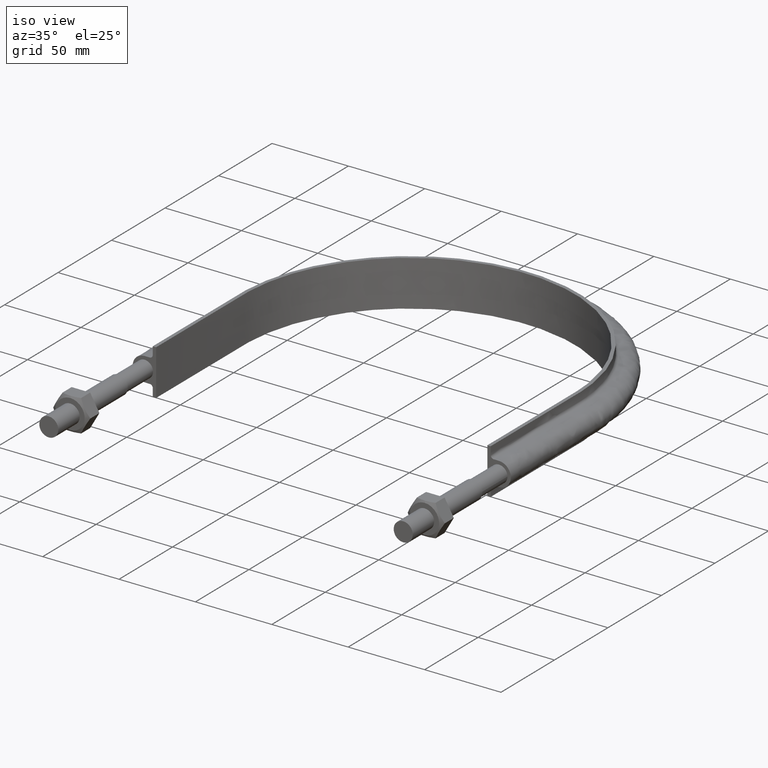
[diagram: clean part render]
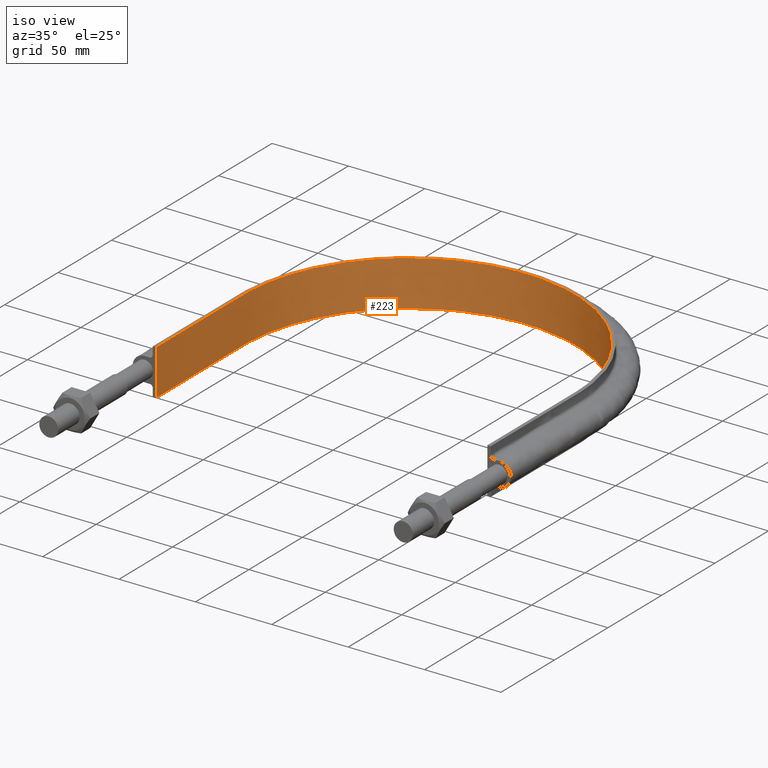
[diagram: same view with one face highlighted and labeled with its STEP entity id]
A machine part, iso view. The second image highlights one B-rep face of the part: STEP entity #223.
In plain terms, the highlighted face is a SurfaceOfExtrusion surface.
Its self-contained STEP definition (entity closure, byte-faithful):
#223 = ADVANCED_FACE( '', ( #269 ), #270, .T. );
#269 = FACE_OUTER_BOUND( '', #897, .T. );
#270 = SURFACE_OF_LINEAR_EXTRUSION( '', #898, #899 );
#897 = EDGE_LOOP( '', ( #1389, #1390, #1391, #1392 ) );
#898 = B_SPLINE_CURVE_WITH_KNOTS( '', 3, ( #1393, #1394, #1395, #1396, #1397, #1398, #1399, #1400, #1401, #1402, #1403, #1404, #1405, #1406, #1407, #1408, #1409 ), .UNSPECIFIED., .F., .F., ( 4, 3, 1, 1, 1, 1, 1, 1, 1, 3, 4 ), ( -10.0000000000000, -9.00000000000000, -8.00000000000000, -7.00000000000000, -6.00000000000000, -5.00000000000000, -4.00000000000000, -3.00000000000000, -2.00000000000000, -1.00000000000000, 0.000000000000000 ), .UNSPECIFIED. );
#899 = VECTOR( '', #1410, 1000.00000000000 );
#1389 = ORIENTED_EDGE( '', *, *, #1658, .F. );
#1390 = ORIENTED_EDGE( '', *, *, #1653, .F. );
#1391 = ORIENTED_EDGE( '', *, *, #1661, .T. );
#1392 = ORIENTED_EDGE( '', *, *, #1665, .T. );
#1393 = CARTESIAN_POINT( '', ( -108.400000000000, 89.5000000000001, -338.759662970140 ) );
#1394 = CARTESIAN_POINT( '', ( -108.400000000000, 116.866666666667, -338.759662970140 ) );
#1395 = CARTESIAN_POINT( '', ( -108.400000000000, 144.233333333333, -338.759662970140 ) );
#1396 = CARTESIAN_POINT( '', ( -108.400000000000, 171.600000000000, -338.759662970140 ) );
#1397 = CARTESIAN_POINT( '', ( -108.400000000000, 185.774498518656, -338.759662970140 ) );
#1398 = CARTESIAN_POINT( '', ( -102.755814879494, 214.168943035043, -338.759662970140 ) );
#1399 = CARTESIAN_POINT( '', ( -78.6458958671129, 250.244256009620, -338.759662970140 ) );
#1400 = CARTESIAN_POINT( '', ( -42.5628521357854, 274.356283410206, -338.759662970140 ) );
#1401 = CARTESIAN_POINT( '', ( 7.62679078902217E-014, 282.821858294897, -338.759662970140 ) );
#1402 = CARTESIAN_POINT( '', ( 42.5628521357854, 274.356283410206, -338.759662970140 ) );
#1403 = CARTESIAN_POINT( '', ( 78.6458958671129, 250.244256009621, -338.759662970140 ) );
#1404 = CARTESIAN_POINT( '', ( 102.755814879494, 214.168943035043, -338.759662970140 ) );
#1405 = CARTESIAN_POINT( '', ( 108.400000000000, 185.774498518656, -338.759662970140 ) );
#1406 = CARTESIAN_POINT( '', ( 108.400000000000, 171.600000000000, -338.759662970140 ) );
#1407 = CARTESIAN_POINT( '', ( 108.400000000000, 144.233333333333, -338.759662970140 ) );
#1408 = CARTESIAN_POINT( '', ( 108.400000000000, 116.866666666667, -338.759662970140 ) );
#1409 = CARTESIAN_POINT( '', ( 108.400000000000, 89.5000000000000, -338.759662970140 ) );
#1410 = DIRECTION( '', ( 0.000000000000000, 0.000000000000000, 1.00000000000000 ) );
#1653 = EDGE_CURVE( '', #1735, #1736, #1737, .T. );
#1658 = EDGE_CURVE( '', #1736, #1745, #1746, .T. );
#1661 = EDGE_CURVE( '', #1735, #1750, #1751, .T. );
#1665 = EDGE_CURVE( '', #1750, #1745, #1756, .T. );
#1735 = VERTEX_POINT( '', #1883 );
#1736 = VERTEX_POINT( '', #1884 );
#1737 = LINE( '', #1885, #1886 );
#1745 = VERTEX_POINT( '', #1936 );
#1746 = B_SPLINE_CURVE_WITH_KNOTS( '', 3, ( #1937, #1938, #1939, #1940, #1941, #1942, #1943, #1944, #1945, #1946, #1947, #1948, #1949, #1950, #1951, #1952, #1953 ), .UNSPECIFIED., .F., .F., ( 4, 3, 1, 1, 1, 1, 1, 1, 1, 3, 4 ), ( -10.0000000000000, -9.00000000000000, -8.00000000000000, -7.00000000000000, -6.00000000000000, -5.00000000000000, -4.00000000000000, -3.00000000000000, -2.00000000000000, -1.00000000000000, 0.000000000000000 ), .UNSPECIFIED. );
#1750 = VERTEX_POINT( '', #1974 );
#1751 = B_SPLINE_CURVE_WITH_KNOTS( '', 3, ( #1975, #1976, #1977, #1978, #1979, #1980, #1981, #1982, #1983, #1984, #1985, #1986, #1987, #1988, #1989, #1990, #1991 ), .UNSPECIFIED., .F., .F., ( 4, 3, 1, 1, 1, 1, 1, 1, 1, 3, 4 ), ( -10.0000000000000, -9.00000000000000, -8.00000000000000, -7.00000000000000, -6.00000000000000, -5.00000000000000, -4.00000000000000, -3.00000000000000, -2.00000000000000, -1.00000000000000, 0.000000000000000 ), .UNSPECIFIED. );
#1756 = LINE( '', #2043, #2044 );
#1883 = CARTESIAN_POINT( '', ( -108.400000000000, 89.5000000000003, -15.0000000000000 ) );
#1884 = CARTESIAN_POINT( '', ( -108.400000000000, 89.5000000000003, 15.0000000000000 ) );
#1885 = CARTESIAN_POINT( '', ( -108.400000000000, 89.5000000000001, -338.759662970140 ) );
#1886 = VECTOR( '', #2385, 1000.00000000000 );
#1936 = CARTESIAN_POINT( '', ( 108.400000000000, 89.5000000000003, 15.0000000000000 ) );
#1937 = CARTESIAN_POINT( '', ( -108.400000000000, 89.5000000000001, 15.0000000000001 ) );
#1938 = CARTESIAN_POINT( '', ( -108.400000000000, 116.866666666667, 15.0000000000001 ) );
#1939 = CARTESIAN_POINT( '', ( -108.400000000000, 144.233333333333, 15.0000000000001 ) );
#1940 = CARTESIAN_POINT( '', ( -108.400000000000, 171.600000000000, 15.0000000000001 ) );
#1941 = CARTESIAN_POINT( '', ( -108.400000000000, 185.774498518656, 15.0000000000001 ) );
#1942 = CARTESIAN_POINT( '', ( -102.755814879494, 214.168943035043, 15.0000000000001 ) );
#1943 = CARTESIAN_POINT( '', ( -78.6458958671129, 250.244256009620, 15.0000000000001 ) );
#1944 = CARTESIAN_POINT( '', ( -42.5628521357854, 274.356283410206, 15.0000000000001 ) );
#1945 = CARTESIAN_POINT( '', ( 7.62679078902217E-014, 282.821858294897, 15.0000000000001 ) );
#1946 = CARTESIAN_POINT( '', ( 42.5628521357854, 274.356283410206, 15.0000000000001 ) );
#1947 = CARTESIAN_POINT( '', ( 78.6458958671129, 250.244256009621, 15.0000000000001 ) );
#1948 = CARTESIAN_POINT( '', ( 102.755814879494, 214.168943035043, 15.0000000000001 ) );
#1949 = CARTESIAN_POINT( '', ( 108.400000000000, 185.774498518656, 15.0000000000001 ) );
#1950 = CARTESIAN_POINT( '', ( 108.400000000000, 171.600000000000, 15.0000000000001 ) );
#1951 = CARTESIAN_POINT( '', ( 108.400000000000, 144.233333333333, 15.0000000000001 ) );
#1952 = CARTESIAN_POINT( '', ( 108.400000000000, 116.866666666667, 15.0000000000001 ) );
#1953 = CARTESIAN_POINT( '', ( 108.400000000000, 89.5000000000000, 15.0000000000001 ) );
#1974 = CARTESIAN_POINT( '', ( 108.400000000000, 89.5000000000000, -15.0000000000000 ) );
#1975 = CARTESIAN_POINT( '', ( -108.400000000000, 89.5000000000001, -15.0000000000000 ) );
#1976 = CARTESIAN_POINT( '', ( -108.400000000000, 116.866666666667, -15.0000000000000 ) );
#1977 = CARTESIAN_POINT( '', ( -108.400000000000, 144.233333333333, -15.0000000000000 ) );
#1978 = CARTESIAN_POINT( '', ( -108.400000000000, 171.600000000000, -15.0000000000000 ) );
#1979 = CARTESIAN_POINT( '', ( -108.400000000000, 185.774498518656, -15.0000000000000 ) );
#1980 = CARTESIAN_POINT( '', ( -102.755814879494, 214.168943035043, -15.0000000000000 ) );
#1981 = CARTESIAN_POINT( '', ( -78.6458958671129, 250.244256009620, -15.0000000000000 ) );
#1982 = CARTESIAN_POINT( '', ( -42.5628521357854, 274.356283410206, -15.0000000000000 ) );
#1983 = CARTESIAN_POINT( '', ( 7.62679078902217E-014, 282.821858294897, -15.0000000000000 ) );
#1984 = CARTESIAN_POINT( '', ( 42.5628521357854, 274.356283410206, -15.0000000000000 ) );
#1985 = CARTESIAN_POINT( '', ( 78.6458958671129, 250.244256009621, -15.0000000000000 ) );
#1986 = CARTESIAN_POINT( '', ( 102.755814879494, 214.168943035043, -15.0000000000000 ) );
#1987 = CARTESIAN_POINT( '', ( 108.400000000000, 185.774498518656, -15.0000000000000 ) );
#1988 = CARTESIAN_POINT( '', ( 108.400000000000, 171.600000000000, -15.0000000000000 ) );
#1989 = CARTESIAN_POINT( '', ( 108.400000000000, 144.233333333333, -15.0000000000000 ) );
#1990 = CARTESIAN_POINT( '', ( 108.400000000000, 116.866666666667, -15.0000000000000 ) );
#1991 = CARTESIAN_POINT( '', ( 108.400000000000, 89.5000000000000, -15.0000000000000 ) );
#2043 = CARTESIAN_POINT( '', ( 108.400000000000, 89.5000000000000, -338.759662970140 ) );
#2044 = VECTOR( '', #2390, 1000.00000000000 );
#2385 = DIRECTION( '', ( 0.000000000000000, 0.000000000000000, 1.00000000000000 ) );
#2390 = DIRECTION( '', ( 0.000000000000000, 0.000000000000000, 1.00000000000000 ) );